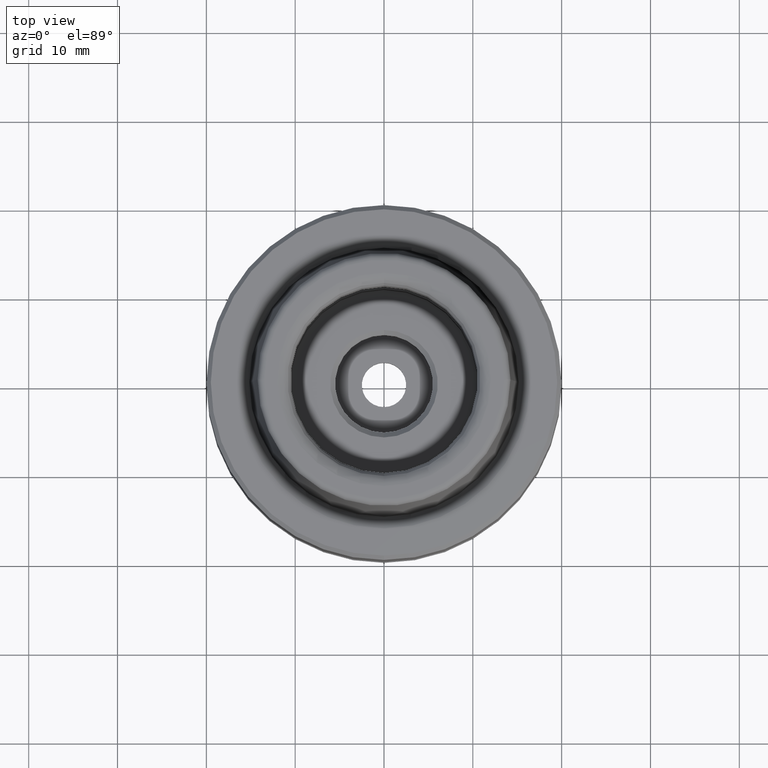
[diagram: clean part render]
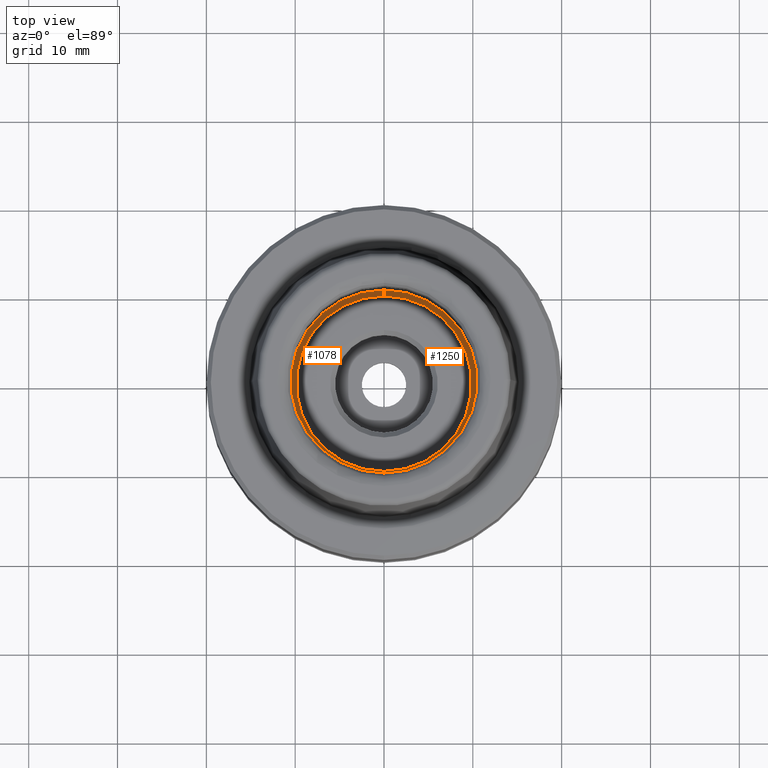
[diagram: same view with one multi-face feature highlighted, each face labeled with its STEP entity id]
A machine part, top view. The highlighted faces form ONE feature: a constant-radius fillet chain: 2 tangent blend faces with common blend radius 1 mm. The faces share edges in the B-rep.
Their STEP definitions:
[1] entity #1078 (Torus):
#804=VERTEX_POINT('',#2207);
#978=EDGE_CURVE('',#804,#1390,#2397,.T.);
#1078=ADVANCED_FACE('NONE',(#2513),#2514,.F.);
#1390=VERTEX_POINT('',#2867);
#1464=VERTEX_POINT('NONE',#2948);
#1594=EDGE_CURVE('NONE',#1854,#804,#3095,.T.);
#1854=VERTEX_POINT('NONE',#3381);
#1912=EDGE_CURVE('NONE',#1464,#1854,#3447,.T.);
#2024=EDGE_CURVE('NONE',#1464,#1390,#3569,.T.);
#2207=CARTESIAN_POINT('',(-1.1712232468438E-015,-10.875,-6.95));
#2397=CIRCLE('',#4067,10.875);
#2513=FACE_OUTER_BOUND('',#4245,.T.);
#2514=TOROIDAL_SURFACE('',#4246,9.87499999999999,1.0);
#2867=CARTESIAN_POINT('',(0.0,10.875,-6.95));
#2948=CARTESIAN_POINT('',(0.0,9.87499999999999,-7.95));
#3095=CIRCLE('',#5193,1.0);
#3381=CARTESIAN_POINT('',(-1.26483406067985E-015,-9.87499999999999,-7.95));
#3447=CIRCLE('',#5683,9.87499999999999);
#3569=CIRCLE('',#5880,1.0);
#4067=AXIS2_PLACEMENT_3D('',#6302,#6303,#6304);
#4245=EDGE_LOOP('',(#6489,#6490,#6491,#6492));
#4246=AXIS2_PLACEMENT_3D('',#6493,#6494,#6495);
#5193=AXIS2_PLACEMENT_3D('',#7250,#7251,#7252);
#5683=AXIS2_PLACEMENT_3D('',#7692,#7693,#7694);
#5880=AXIS2_PLACEMENT_3D('',#7846,#7847,#7848);
#6302=CARTESIAN_POINT('',(0.0,3.62099209179252E-052,-6.95));
#6303=DIRECTION('',(0.0,-1.07844543417439E-017,-1.0));
#6304=DIRECTION('',(1.0,0.0,0.0));
#6489=ORIENTED_EDGE('',*,*,#978,.F.);
#6490=ORIENTED_EDGE('',*,*,#1594,.F.);
#6491=ORIENTED_EDGE('',*,*,#1912,.F.);
#6492=ORIENTED_EDGE('',*,*,#2024,.T.);
#6493=CARTESIAN_POINT('',(0.0,0.0,-6.95));
#6494=DIRECTION('',(0.0,1.07844543417439E-017,1.0));
#6495=DIRECTION('',(0.0,1.0,-1.07844543417439E-017));
#7250=CARTESIAN_POINT('',(-1.20933871415801E-015,-9.87499999999999,-6.95));
#7251=DIRECTION('',(-1.0,1.22464679914735E-016,-1.32071474901674E-033));
#7252=DIRECTION('',(1.22464679914735E-016,1.0,-3.25581322640027E-065));
#7692=CARTESIAN_POINT('',(0.0,2.91719489944172E-016,-7.95));
#7693=DIRECTION('',(0.0,0.0,1.0));
#7694=DIRECTION('',(0.0,1.0,-0.0));
#7846=CARTESIAN_POINT('',(0.0,9.87499999999999,-6.95));
#7847=DIRECTION('',(1.0,0.0,0.0));
#7848=DIRECTION('',(0.0,-0.0,1.0));
[2] entity #1250 (Torus):
#804=VERTEX_POINT('',#2207);
#1250=ADVANCED_FACE('NONE',(#2713),#2714,.F.);
#1390=VERTEX_POINT('',#2867);
#1418=EDGE_CURVE('NONE',#1854,#1464,#2897,.T.);
#1464=VERTEX_POINT('NONE',#2948);
#1594=EDGE_CURVE('NONE',#1854,#804,#3095,.T.);
#1712=EDGE_CURVE('',#1390,#804,#3224,.T.);
#1854=VERTEX_POINT('NONE',#3381);
#2024=EDGE_CURVE('NONE',#1464,#1390,#3569,.T.);
#2207=CARTESIAN_POINT('',(-1.1712232468438E-015,-10.875,-6.95));
#2713=FACE_OUTER_BOUND('',#4588,.T.);
#2714=TOROIDAL_SURFACE('',#4589,9.87499999999999,1.0);
#2867=CARTESIAN_POINT('',(0.0,10.875,-6.95));
#2897=CIRCLE('',#4869,9.87499999999999);
#2948=CARTESIAN_POINT('',(0.0,9.87499999999999,-7.95));
#3095=CIRCLE('',#5193,1.0);
#3224=CIRCLE('',#5399,10.875);
#3381=CARTESIAN_POINT('',(-1.26483406067985E-015,-9.87499999999999,-7.95));
#3569=CIRCLE('',#5880,1.0);
#4588=EDGE_LOOP('',(#6782,#6783,#6784,#6785));
#4589=AXIS2_PLACEMENT_3D('',#6786,#6787,#6788);
#4869=AXIS2_PLACEMENT_3D('',#6984,#6985,#6986);
#5193=AXIS2_PLACEMENT_3D('',#7250,#7251,#7252);
#5399=AXIS2_PLACEMENT_3D('',#7407,#7408,#7409);
#5880=AXIS2_PLACEMENT_3D('',#7846,#7847,#7848);
#6782=ORIENTED_EDGE('',*,*,#1712,.F.);
#6783=ORIENTED_EDGE('',*,*,#2024,.F.);
#6784=ORIENTED_EDGE('',*,*,#1418,.F.);
#6785=ORIENTED_EDGE('',*,*,#1594,.T.);
#6786=CARTESIAN_POINT('',(0.0,0.0,-6.95));
#6787=DIRECTION('',(0.0,1.07844543417439E-017,1.0));
#6788=DIRECTION('',(0.0,1.0,-1.07844543417439E-017));
#6984=CARTESIAN_POINT('',(0.0,2.91719489944172E-016,-7.95));
#6985=DIRECTION('',(0.0,0.0,1.0));
#6986=DIRECTION('',(0.0,1.0,-0.0));
#7250=CARTESIAN_POINT('',(-1.20933871415801E-015,-9.87499999999999,-6.95));
#7251=DIRECTION('',(-1.0,1.22464679914735E-016,-1.32071474901674E-033));
#7252=DIRECTION('',(1.22464679914735E-016,1.0,-3.25581322640027E-065));
#7407=CARTESIAN_POINT('',(0.0,3.62099209179252E-052,-6.95));
#7408=DIRECTION('',(0.0,-1.07844543417439E-017,-1.0));
#7409=DIRECTION('',(1.0,0.0,0.0));
#7846=CARTESIAN_POINT('',(0.0,9.87499999999999,-6.95));
#7847=DIRECTION('',(1.0,0.0,0.0));
#7848=DIRECTION('',(0.0,-0.0,1.0));